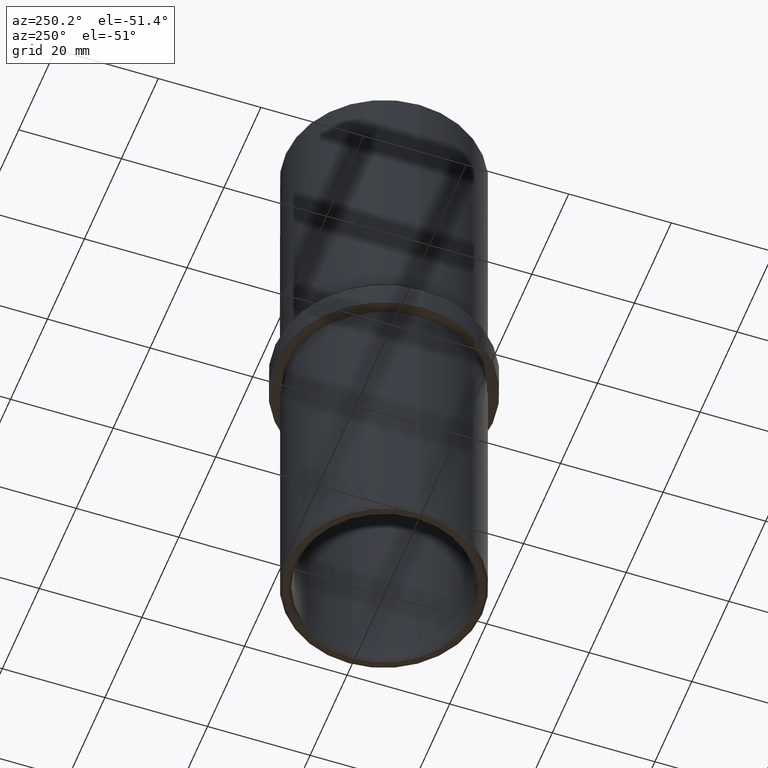
[diagram: clean part render]
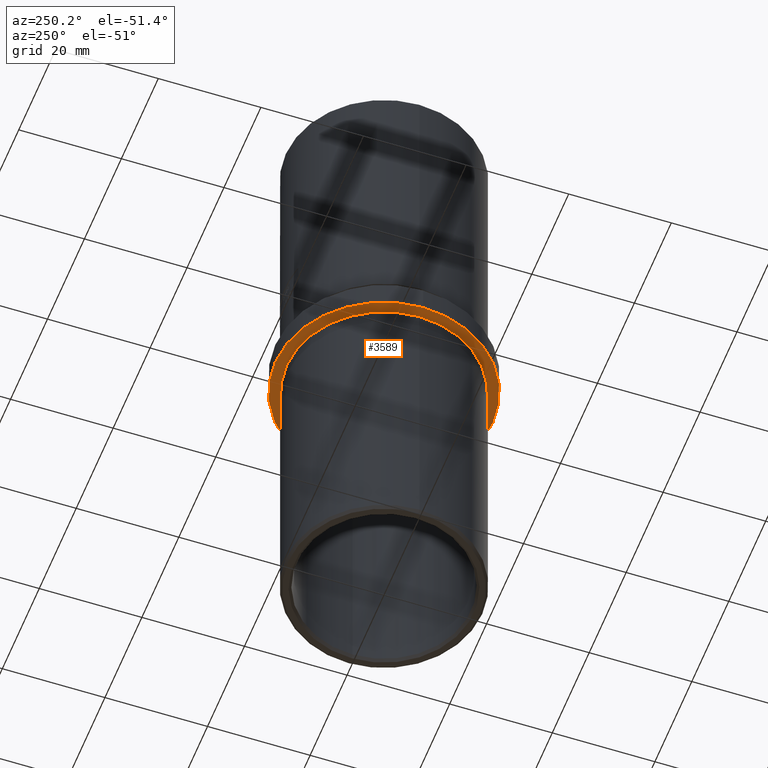
[diagram: same view with one face highlighted and labeled with its STEP entity id]
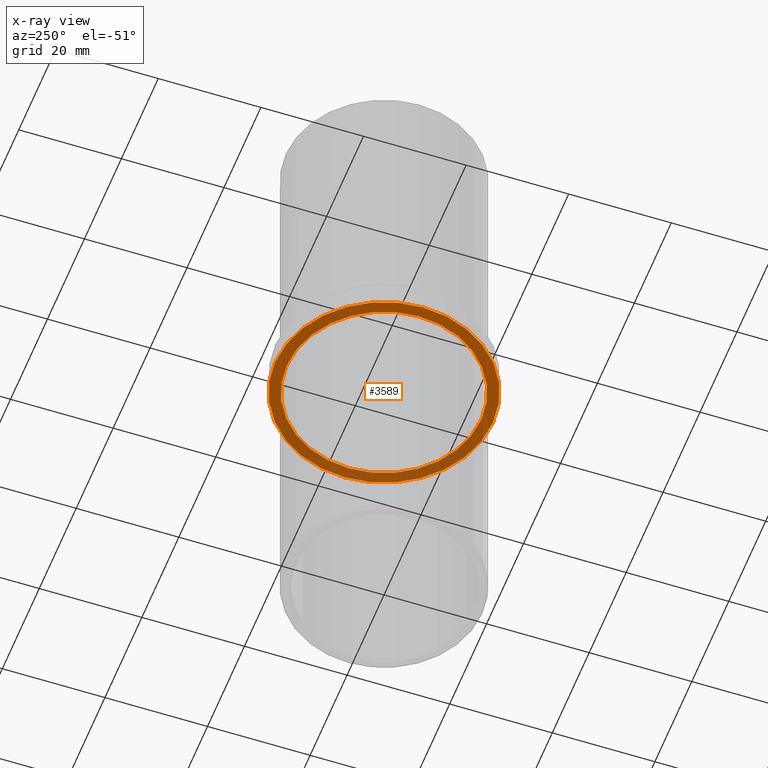
[diagram: x-ray of the same camera — body ghosted, the highlighted face saturated]
A machine part, auxiliary view. The second image highlights one B-rep face of the part: STEP entity #3589.
The next image is the same camera in x-ray: the body ghosted, the highlighted face saturated — about 39% of this face is hidden behind the body in this view.
In plain terms, the highlighted planar face has unit normal (0, 0, -1).
Its self-contained STEP definition (entity closure, byte-faithful):
#130 = CARTESIAN_POINT ( 'NONE',  ( 0.0000000000000000000, 0.0000000000000000000, -2.500000000000000000 ) ) ;
#201 = ORIENTED_EDGE ( 'NONE', *, *, #14433, .T. ) ;
#1551 = CARTESIAN_POINT ( 'NONE',  ( 0.0000000000000000000, 0.0000000000000000000, -2.500000000000000000 ) ) ;
#2061 = EDGE_CURVE ( 'NONE', #8482, #13993, #6652, .T. ) ;
#2677 = CARTESIAN_POINT ( 'NONE',  ( 0.0000000000000000000, 0.0000000000000000000, -2.500000000000000000 ) ) ;
#2756 = DIRECTION ( 'NONE',  ( 0.0000000000000000000, 0.0000000000000000000, -1.000000000000000000 ) ) ;
#3589 = ADVANCED_FACE ( 'NONE', ( #16113, #10316 ), #16114, .T. ) ;
#4351 = CIRCLE ( 'NONE', #15669, 18.95000000000000300 ) ;
#4924 = DIRECTION ( 'NONE',  ( 1.000000000000000000, 0.0000000000000000000, 0.0000000000000000000 ) ) ;
#5173 = ORIENTED_EDGE ( 'NONE', *, *, #6485, .F. ) ;
#5977 = ORIENTED_EDGE ( 'NONE', *, *, #19546, .F. ) ;
#6214 = CARTESIAN_POINT ( 'NONE',  ( 18.95000000000000300, -2.320705684384234700E-015, -2.500000000000000000 ) ) ;
#6485 = EDGE_CURVE ( 'NONE', #15430, #18174, #11702, .T. ) ;
#6652 = CIRCLE ( 'NONE', #9119, 18.95000000000000300 ) ;
#6915 = EDGE_LOOP ( 'NONE', ( #5173, #5977 ) ) ;
#6949 = CIRCLE ( 'NONE', #9897, 21.19999999999999900 ) ;
#7134 = CARTESIAN_POINT ( 'NONE',  ( 0.0000000000000000000, 0.0000000000000000000, -2.500000000000000000 ) ) ;
#7600 = DIRECTION ( 'NONE',  ( 1.000000000000000000, 0.0000000000000000000, 0.0000000000000000000 ) ) ;
#8242 = CARTESIAN_POINT ( 'NONE',  ( -21.19999999999999900, 0.0000000000000000000, -2.500000000000000000 ) ) ;
#8482 = VERTEX_POINT ( 'NONE', #6214 ) ;
#8836 = DIRECTION ( 'NONE',  ( 1.000000000000000000, 0.0000000000000000000, 0.0000000000000000000 ) ) ;
#9119 = AXIS2_PLACEMENT_3D ( 'NONE', #7134, #19008, #8836 ) ;
#9897 = AXIS2_PLACEMENT_3D ( 'NONE', #130, #13826, #12069 ) ;
#10316 = FACE_OUTER_BOUND ( 'NONE', #6915, .T. ) ;
#10508 = EDGE_LOOP ( 'NONE', ( #201, #18028 ) ) ;
#10744 = AXIS2_PLACEMENT_3D ( 'NONE', #1551, #13386, #4924 ) ;
#11702 = CIRCLE ( 'NONE', #10744, 21.19999999999999900 ) ;
#12069 = DIRECTION ( 'NONE',  ( 1.000000000000000000, 0.0000000000000000000, 0.0000000000000000000 ) ) ;
#13133 = CARTESIAN_POINT ( 'NONE',  ( -18.95000000000000300, 0.0000000000000000000, -2.500000000000000000 ) ) ;
#13386 = DIRECTION ( 'NONE',  ( -0.0000000000000000000, -0.0000000000000000000, 1.000000000000000000 ) ) ;
#13826 = DIRECTION ( 'NONE',  ( -0.0000000000000000000, -0.0000000000000000000, 1.000000000000000000 ) ) ;
#13970 = CARTESIAN_POINT ( 'NONE',  ( 21.19999999999999900, 2.596251214192388800E-015, -2.500000000000000000 ) ) ;
#13993 = VERTEX_POINT ( 'NONE', #13133 ) ;
#14433 = EDGE_CURVE ( 'NONE', #13993, #8482, #4351, .T. ) ;
#15430 = VERTEX_POINT ( 'NONE', #8242 ) ;
#15669 = AXIS2_PLACEMENT_3D ( 'NONE', #19866, #16673, #18365 ) ;
#16113 = FACE_BOUND ( 'NONE', #10508, .T. ) ;
#16114 = PLANE ( 'NONE',  #17783 ) ;
#16673 = DIRECTION ( 'NONE',  ( -0.0000000000000000000, -0.0000000000000000000, 1.000000000000000000 ) ) ;
#17783 = AXIS2_PLACEMENT_3D ( 'NONE', #2677, #2756, #7600 ) ;
#18028 = ORIENTED_EDGE ( 'NONE', *, *, #2061, .T. ) ;
#18174 = VERTEX_POINT ( 'NONE', #13970 ) ;
#18365 = DIRECTION ( 'NONE',  ( 1.000000000000000000, 0.0000000000000000000, 0.0000000000000000000 ) ) ;
#19008 = DIRECTION ( 'NONE',  ( -0.0000000000000000000, -0.0000000000000000000, 1.000000000000000000 ) ) ;
#19546 = EDGE_CURVE ( 'NONE', #18174, #15430, #6949, .T. ) ;
#19866 = CARTESIAN_POINT ( 'NONE',  ( 0.0000000000000000000, 0.0000000000000000000, -2.500000000000000000 ) ) ;